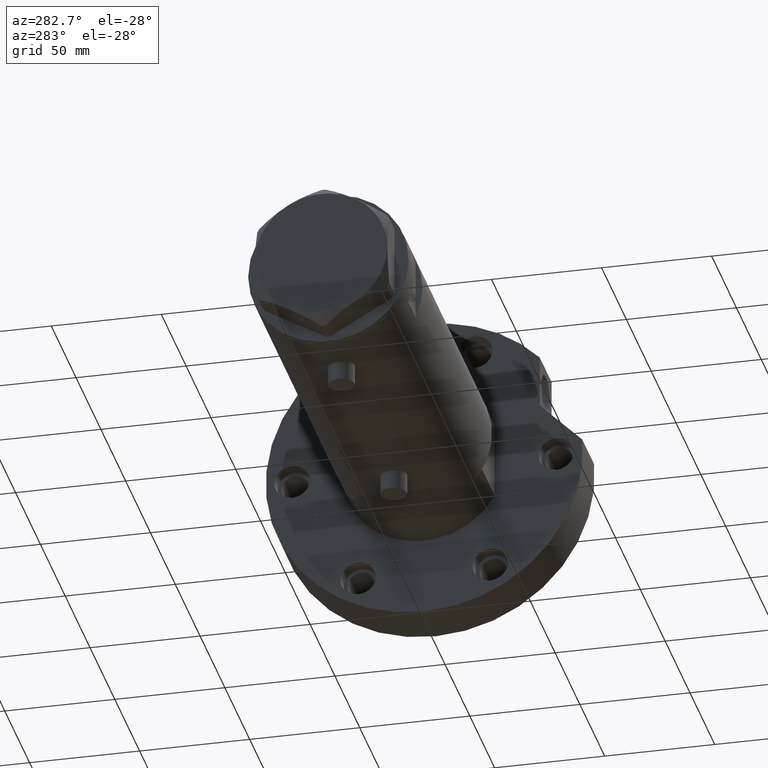
[diagram: clean part render]
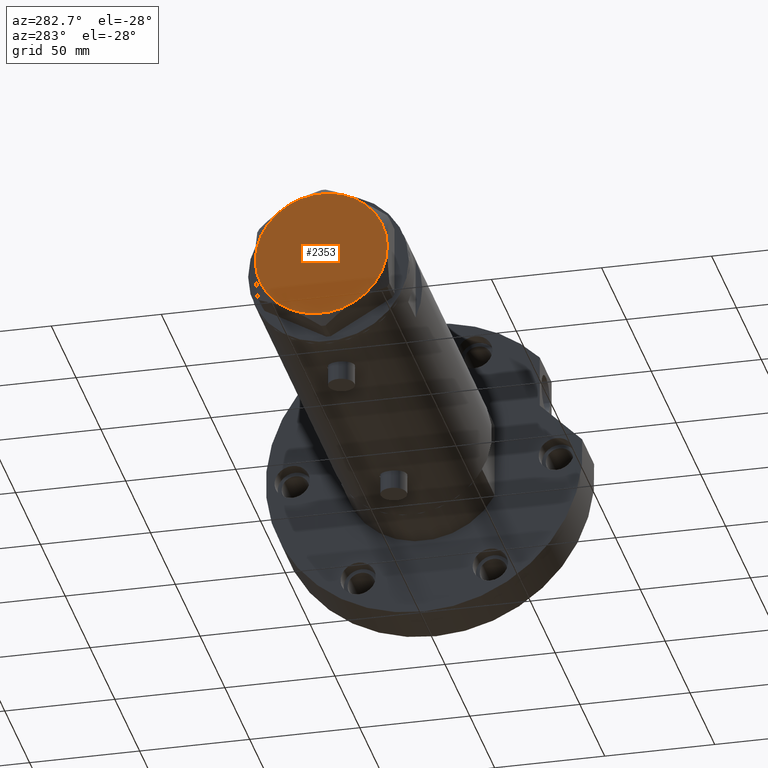
[diagram: same view with one face highlighted and labeled with its STEP entity id]
A machine part, auxiliary view. The second image highlights one B-rep face of the part: STEP entity #2353.
In plain terms, the highlighted planar face has unit normal (-1, -0, 0).
Its self-contained STEP definition (entity closure, byte-faithful):
#48 = DIRECTION ( 'NONE',  ( 1.000000000000000000, 0.000000000000000000, 0.000000000000000000 ) ) ;
#63 = EDGE_CURVE ( 'NONE', #6032, #780, #372, .T. ) ;
#168 = PLANE ( 'NONE',  #4153 ) ;
#372 = CIRCLE ( 'NONE', #4926, 30.00000000000000000 ) ;
#546 = DIRECTION ( 'NONE',  ( 0.000000000000000000, 0.000000000000000000, 1.000000000000000000 ) ) ;
#723 = VERTEX_POINT ( 'NONE', #4081 ) ;
#780 = VERTEX_POINT ( 'NONE', #1187 ) ;
#784 = AXIS2_PLACEMENT_3D ( 'NONE', #1507, #5667, #48 ) ;
#839 = ORIENTED_EDGE ( 'NONE', *, *, #4964, .T. ) ;
#1062 = CARTESIAN_POINT ( 'NONE',  ( 14.99999999999998757, -25.98076211353316722, 14.50000000000000000 ) ) ;
#1150 = FACE_OUTER_BOUND ( 'NONE', #2554, .T. ) ;
#1187 = CARTESIAN_POINT ( 'NONE',  ( 30.00000000000000000, 9.013887592422954582E-15, 14.50000000000000000 ) ) ;
#1507 = CARTESIAN_POINT ( 'NONE',  ( 0.000000000000000000, 0.000000000000000000, 14.50000000000000000 ) ) ;
#1587 = DIRECTION ( 'NONE',  ( 0.000000000000000000, 0.000000000000000000, 1.000000000000000000 ) ) ;
#1697 = VERTEX_POINT ( 'NONE', #3652 ) ;
#1834 = CARTESIAN_POINT ( 'NONE',  ( 0.000000000000000000, 0.000000000000000000, 14.50000000000000000 ) ) ;
#1863 = CARTESIAN_POINT ( 'NONE',  ( 0.000000000000000000, 0.000000000000000000, 14.50000000000000000 ) ) ;
#1901 = CIRCLE ( 'NONE', #4076, 30.00000000000000000 ) ;
#2081 = AXIS2_PLACEMENT_3D ( 'NONE', #1834, #2356, #2258 ) ;
#2139 = VERTEX_POINT ( 'NONE', #3313 ) ;
#2144 = ORIENTED_EDGE ( 'NONE', *, *, #5956, .T. ) ;
#2154 = ORIENTED_EDGE ( 'NONE', *, *, #4995, .T. ) ;
#2177 = ORIENTED_EDGE ( 'NONE', *, *, #4163, .T. ) ;
#2258 = DIRECTION ( 'NONE',  ( 1.000000000000000000, 0.000000000000000000, 0.000000000000000000 ) ) ;
#2353 = ADVANCED_FACE ( 'NONE', ( #1150 ), #168, .T. ) ;
#2356 = DIRECTION ( 'NONE',  ( 0.000000000000000000, 0.000000000000000000, 1.000000000000000000 ) ) ;
#2482 = CIRCLE ( 'NONE', #784, 30.00000000000000000 ) ;
#2554 = EDGE_LOOP ( 'NONE', ( #5724, #2154, #2177, #839, #2144, #3091 ) ) ;
#2913 = CARTESIAN_POINT ( 'NONE',  ( 14.99999999999999467, 25.98076211353316367, 14.50000000000000000 ) ) ;
#3001 = DIRECTION ( 'NONE',  ( 1.000000000000000000, 0.000000000000000000, 0.000000000000000000 ) ) ;
#3011 = CARTESIAN_POINT ( 'NONE',  ( 0.000000000000000000, 0.000000000000000000, 14.50000000000000000 ) ) ;
#3091 = ORIENTED_EDGE ( 'NONE', *, *, #4447, .T. ) ;
#3313 = CARTESIAN_POINT ( 'NONE',  ( -30.00000000000000000, 0.000000000000000000, 14.50000000000000000 ) ) ;
#3334 = CARTESIAN_POINT ( 'NONE',  ( 0.000000000000000000, 0.000000000000000000, 14.50000000000000000 ) ) ;
#3404 = DIRECTION ( 'NONE',  ( 1.000000000000000000, 0.000000000000000000, -0.000000000000000000 ) ) ;
#3459 = CARTESIAN_POINT ( 'NONE',  ( 0.000000000000000000, 0.000000000000000000, 14.50000000000000000 ) ) ;
#3478 = CIRCLE ( 'NONE', #3569, 30.00000000000000000 ) ;
#3569 = AXIS2_PLACEMENT_3D ( 'NONE', #3011, #1587, #3881 ) ;
#3652 = CARTESIAN_POINT ( 'NONE',  ( -14.99999999999999645, 25.98076211353316367, 14.50000000000000000 ) ) ;
#3881 = DIRECTION ( 'NONE',  ( 1.000000000000000000, 0.000000000000000000, 0.000000000000000000 ) ) ;
#3921 = DIRECTION ( 'NONE',  ( 0.000000000000000000, 0.000000000000000000, 1.000000000000000000 ) ) ;
#4076 = AXIS2_PLACEMENT_3D ( 'NONE', #5731, #546, #3001 ) ;
#4081 = CARTESIAN_POINT ( 'NONE',  ( -14.99999999999999645, -25.98076211353316367, 14.50000000000000000 ) ) ;
#4153 = AXIS2_PLACEMENT_3D ( 'NONE', #3459, #3921, #3404 ) ;
#4163 = EDGE_CURVE ( 'NONE', #4679, #1697, #3478, .T. ) ;
#4344 = DIRECTION ( 'NONE',  ( 0.000000000000000000, 0.000000000000000000, 1.000000000000000000 ) ) ;
#4447 = EDGE_CURVE ( 'NONE', #723, #6032, #4767, .T. ) ;
#4455 = AXIS2_PLACEMENT_3D ( 'NONE', #3334, #4759, #5722 ) ;
#4679 = VERTEX_POINT ( 'NONE', #2913 ) ;
#4759 = DIRECTION ( 'NONE',  ( 0.000000000000000000, 0.000000000000000000, 1.000000000000000000 ) ) ;
#4767 = CIRCLE ( 'NONE', #2081, 30.00000000000000000 ) ;
#4926 = AXIS2_PLACEMENT_3D ( 'NONE', #1863, #4344, #5681 ) ;
#4964 = EDGE_CURVE ( 'NONE', #1697, #2139, #2482, .T. ) ;
#4995 = EDGE_CURVE ( 'NONE', #780, #4679, #5752, .T. ) ;
#5667 = DIRECTION ( 'NONE',  ( 0.000000000000000000, 0.000000000000000000, 1.000000000000000000 ) ) ;
#5681 = DIRECTION ( 'NONE',  ( 1.000000000000000000, 0.000000000000000000, 0.000000000000000000 ) ) ;
#5722 = DIRECTION ( 'NONE',  ( 1.000000000000000000, 0.000000000000000000, 0.000000000000000000 ) ) ;
#5724 = ORIENTED_EDGE ( 'NONE', *, *, #63, .T. ) ;
#5731 = CARTESIAN_POINT ( 'NONE',  ( 0.000000000000000000, 0.000000000000000000, 14.50000000000000000 ) ) ;
#5752 = CIRCLE ( 'NONE', #4455, 30.00000000000000000 ) ;
#5956 = EDGE_CURVE ( 'NONE', #2139, #723, #1901, .T. ) ;
#6032 = VERTEX_POINT ( 'NONE', #1062 ) ;